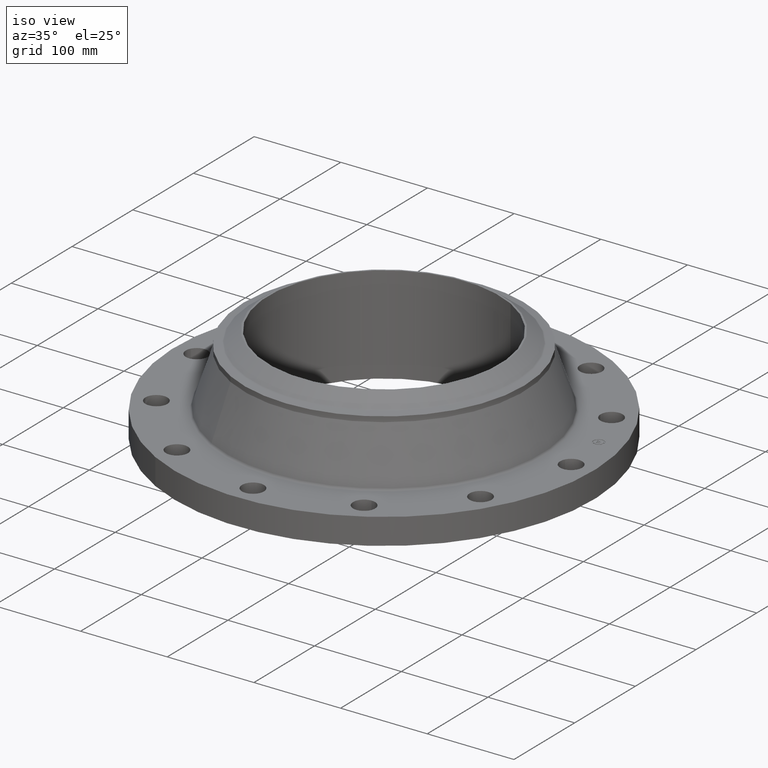
[diagram: clean part render]
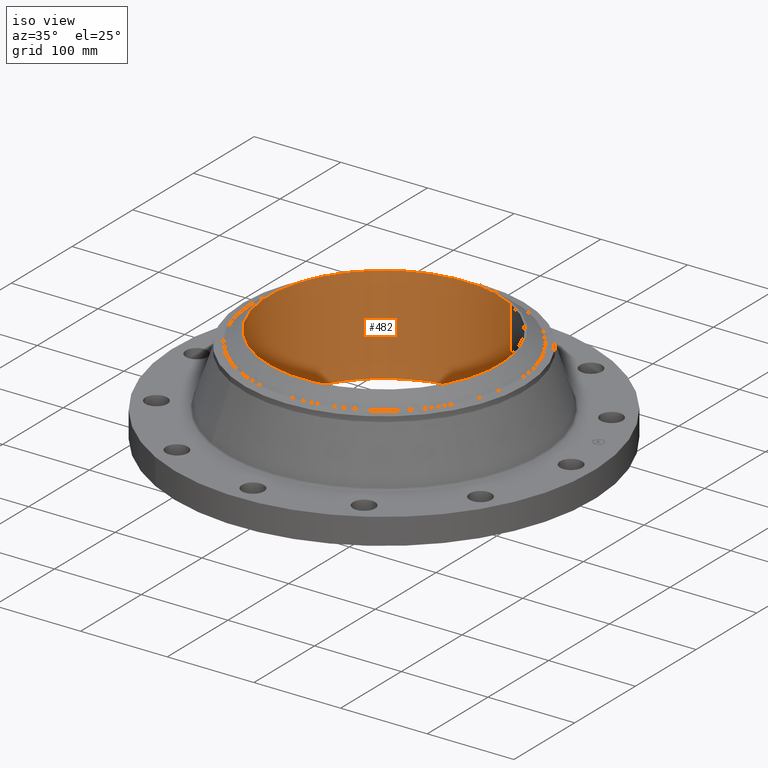
[diagram: same view with one face highlighted and labeled with its STEP entity id]
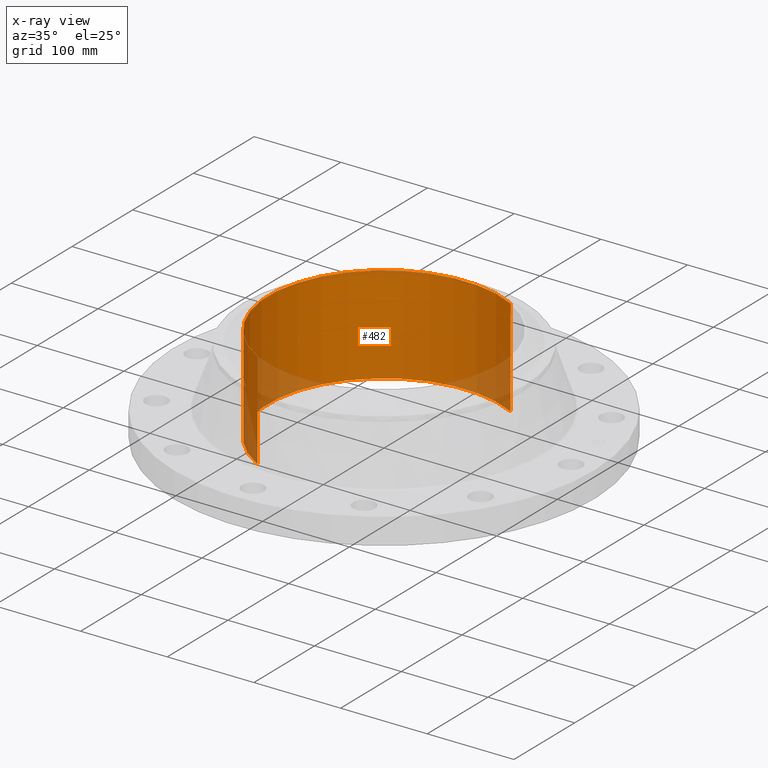
[diagram: x-ray of the same camera — body ghosted, the highlighted face saturated]
A machine part, iso view. The second image highlights one B-rep face of the part: STEP entity #482.
The next image is the same camera in x-ray: the body ghosted, the highlighted face saturated — about 12% of this face is hidden behind the body in this view.
In plain terms, the highlighted cylindrical surface (partial cylindrical patch) has radius 133.35 mm, axis along (0, 0, -1).
Its self-contained STEP definition (entity closure, byte-faithful):
#396=AXIS2_PLACEMENT_3D('Circle Axis2P3D',#394,#395,$) ;
#455=AXIS2_PLACEMENT_3D('Cylinder Axis2P3D',#452,#453,#454) ;
#466=AXIS2_PLACEMENT_3D('Circle Axis2P3D',#464,#465,$) ;
#394=CARTESIAN_POINT('Axis2P3D Location',(0.,0.,4.44000000002)) ;
#398=CARTESIAN_POINT('Vertex',(-2.51698407768,-4.60730844994,4.44000000002)) ;
#400=CARTESIAN_POINT('Vertex',(2.51698407768,4.60730844994,4.44000000002)) ;
#452=CARTESIAN_POINT('Axis2P3D Location',(0.,0.,2.22000000001)) ;
#457=CARTESIAN_POINT('Line Origine',(-2.51698407768,-4.60730844994,2.22000000001)) ;
#461=CARTESIAN_POINT('Vertex',(-2.51698407768,-4.60730844994,-2.85336059242E-014)) ;
#464=CARTESIAN_POINT('Axis2P3D Location',(0.,0.,-2.85336059242E-014)) ;
#468=CARTESIAN_POINT('Vertex',(2.51698407768,4.60730844994,-2.85336059242E-014)) ;
#471=CARTESIAN_POINT('Line Origine',(2.51698407768,4.60730844994,2.22000000001)) ;
#395=DIRECTION('Axis2P3D Direction',(0.,0.,-0.0393700787402)) ;
#453=DIRECTION('Axis2P3D Direction',(0.,0.,-0.0393700787402)) ;
#454=DIRECTION('Axis2P3D XDirection',(0.0188750212049,0.0345504945626,0.)) ;
#458=DIRECTION('Vector Direction',(0.,0.,-0.0393700787402)) ;
#465=DIRECTION('Axis2P3D Direction',(0.,0.,-0.0393700787402)) ;
#472=DIRECTION('Vector Direction',(0.,0.,-0.0393700787402)) ;
#459=VECTOR('Line Direction',#458,0.0393700787402) ;
#473=VECTOR('Line Direction',#472,0.0393700787402) ;
#477=ORIENTED_EDGE('',*,*,#402,.F.) ;
#478=ORIENTED_EDGE('',*,*,#463,.T.) ;
#479=ORIENTED_EDGE('',*,*,#470,.T.) ;
#480=ORIENTED_EDGE('',*,*,#475,.F.) ;
#482=ADVANCED_FACE('PartBody',(#481),#456,.F.) ;
#397=CIRCLE('generated circle',#396,5.25000000002) ;
#467=CIRCLE('generated circle',#466,5.25000000002) ;
#456=CYLINDRICAL_SURFACE('generated cylinder',#455,5.25000000002) ;
#402=EDGE_CURVE('',#399,#401,#397,.T.) ;
#463=EDGE_CURVE('',#399,#462,#460,.T.) ;
#470=EDGE_CURVE('',#462,#469,#467,.T.) ;
#475=EDGE_CURVE('',#401,#469,#474,.T.) ;
#476=EDGE_LOOP('',(#477,#478,#479,#480)) ;
#481=FACE_OUTER_BOUND('',#476,.T.) ;
#460=LINE('Line',#457,#459) ;
#474=LINE('Line',#471,#473) ;
#399=VERTEX_POINT('',#398) ;
#401=VERTEX_POINT('',#400) ;
#462=VERTEX_POINT('',#461) ;
#469=VERTEX_POINT('',#468) ;